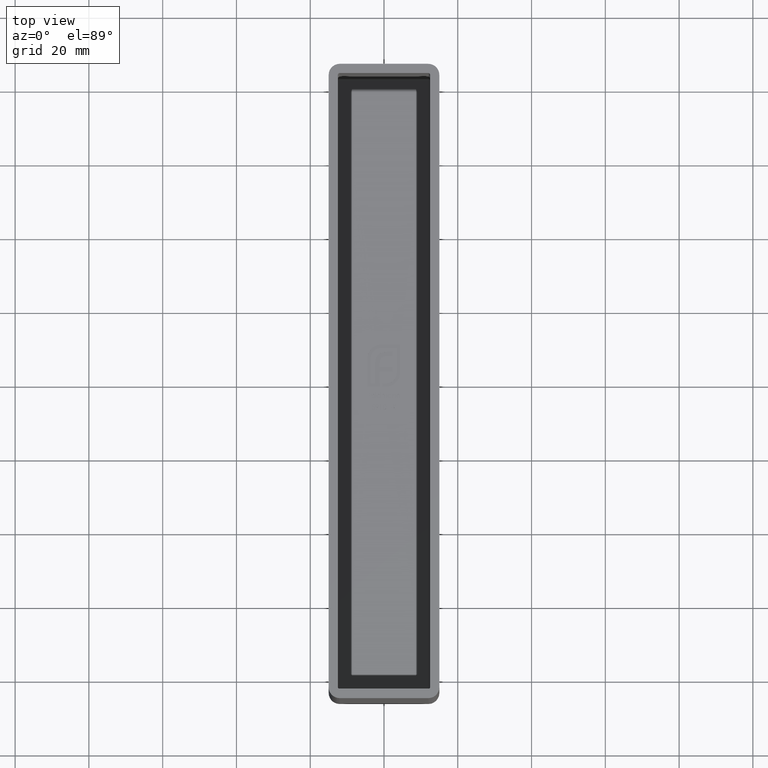
[diagram: clean part render]
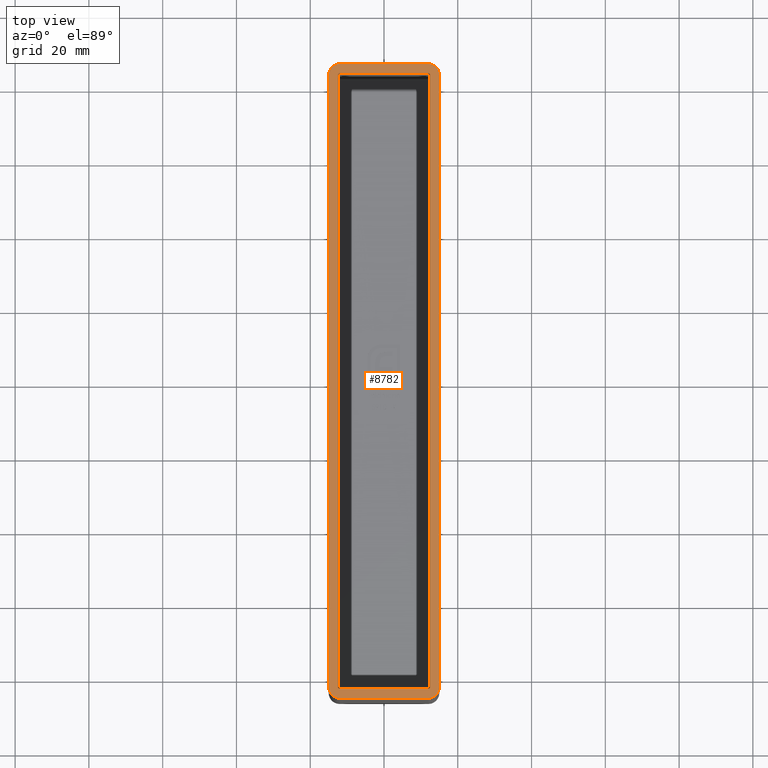
[diagram: same view with one face highlighted and labeled with its STEP entity id]
A machine part, top view. The second image highlights one B-rep face of the part: STEP entity #8782.
In plain terms, the highlighted planar face has unit normal (0, 0, 1).
Its self-contained STEP definition (entity closure, byte-faithful):
#38 = EDGE_CURVE ( 'NONE', #7161, #6505, #11352, .T. ) ;
#202 = EDGE_CURVE ( 'NONE', #8380, #6264, #11638, .T. ) ;
#341 = CIRCLE ( 'NONE', #9864, 3.000000000000000888 ) ;
#423 = VERTEX_POINT ( 'NONE', #10060 ) ;
#430 = DIRECTION ( 'NONE',  ( 1.000000000000000000, 0.000000000000000000, 0.000000000000000000 ) ) ;
#516 = ORIENTED_EDGE ( 'NONE', *, *, #1492, .T. ) ;
#577 = EDGE_CURVE ( 'NONE', #423, #7816, #3168, .T. ) ;
#733 = ORIENTED_EDGE ( 'NONE', *, *, #2365, .F. ) ;
#863 = DIRECTION ( 'NONE',  ( 0.000000000000000000, 0.000000000000000000, 1.000000000000000000 ) ) ;
#899 = CIRCLE ( 'NONE', #5207, 2.999999999999999112 ) ;
#1021 = VERTEX_POINT ( 'NONE', #6332 ) ;
#1160 = CARTESIAN_POINT ( 'NONE',  ( 12.00000000000000888, -83.49999999999998579, 47.00000000000000000 ) ) ;
#1352 = EDGE_CURVE ( 'NONE', #11618, #1021, #1758, .T. ) ;
#1492 = EDGE_CURVE ( 'NONE', #9286, #423, #341, .T. ) ;
#1553 = CARTESIAN_POINT ( 'NONE',  ( 11.99999999999998401, 83.49999999999998579, 47.00000000000000000 ) ) ;
#1576 = EDGE_CURVE ( 'NONE', #6384, #6591, #4871, .T. ) ;
#1758 = CIRCLE ( 'NONE', #3771, 0.5000000000000004441 ) ;
#1810 = DIRECTION ( 'NONE',  ( 0.000000000000000000, 0.000000000000000000, 1.000000000000000000 ) ) ;
#1846 = CARTESIAN_POINT ( 'NONE',  ( 0.000000000000000000, 0.000000000000000000, 47.00000000000000000 ) ) ;
#1975 = CARTESIAN_POINT ( 'NONE',  ( -12.49999999999998046, -82.99999999999998579, 47.00000000000000000 ) ) ;
#2066 = ORIENTED_EDGE ( 'NONE', *, *, #7949, .T. ) ;
#2118 = AXIS2_PLACEMENT_3D ( 'NONE', #9496, #7576, #6466 ) ;
#2289 = CARTESIAN_POINT ( 'NONE',  ( -11.99999999999997868, -82.99999999999998579, 47.00000000000000000 ) ) ;
#2365 = EDGE_CURVE ( 'NONE', #12425, #11618, #7549, .T. ) ;
#2368 = LINE ( 'NONE', #7686, #8347 ) ;
#2541 = DIRECTION ( 'NONE',  ( 0.000000000000000000, 0.000000000000000000, 1.000000000000000000 ) ) ;
#2656 = EDGE_CURVE ( 'NONE', #3924, #7657, #8641, .T. ) ;
#2819 = CARTESIAN_POINT ( 'NONE',  ( -12.50000000000000355, 86.00000000000000000, 47.00000000000000000 ) ) ;
#2918 = LINE ( 'NONE', #12146, #9358 ) ;
#3103 = CARTESIAN_POINT ( 'NONE',  ( 12.49999999999999112, 82.99999999999998579, 47.00000000000000000 ) ) ;
#3168 = LINE ( 'NONE', #7225, #4560 ) ;
#3506 = EDGE_CURVE ( 'NONE', #1021, #4771, #2368, .T. ) ;
#3508 = ORIENTED_EDGE ( 'NONE', *, *, #12201, .T. ) ;
#3573 = FACE_OUTER_BOUND ( 'NONE', #5650, .T. ) ;
#3662 = CIRCLE ( 'NONE', #7935, 0.5000000000000004441 ) ;
#3709 = ORIENTED_EDGE ( 'NONE', *, *, #38, .F. ) ;
#3771 = AXIS2_PLACEMENT_3D ( 'NONE', #8346, #12231, #8209 ) ;
#3841 = AXIS2_PLACEMENT_3D ( 'NONE', #2289, #4296, #11353 ) ;
#3924 = VERTEX_POINT ( 'NONE', #11651 ) ;
#4089 = DIRECTION ( 'NONE',  ( -1.210272192541959355E-16, 1.000000000000000000, 0.000000000000000000 ) ) ;
#4216 = VECTOR ( 'NONE', #8996, 1000.000000000000000 ) ;
#4296 = DIRECTION ( 'NONE',  ( 0.000000000000000000, 0.000000000000000000, 1.000000000000000000 ) ) ;
#4376 = VECTOR ( 'NONE', #12539, 1000.000000000000000 ) ;
#4560 = VECTOR ( 'NONE', #11347, 1000.000000000000000 ) ;
#4769 = CARTESIAN_POINT ( 'NONE',  ( 15.00000000000001421, -82.99999999999998579, 47.00000000000000000 ) ) ;
#4771 = VERTEX_POINT ( 'NONE', #3103 ) ;
#4835 = EDGE_CURVE ( 'NONE', #7657, #12425, #5325, .T. ) ;
#4863 = DIRECTION ( 'NONE',  ( -1.000000000000000000, 0.000000000000000000, 0.000000000000000000 ) ) ;
#4871 = LINE ( 'NONE', #9553, #4376 ) ;
#4874 = DIRECTION ( 'NONE',  ( 1.000000000000000000, 0.000000000000000000, 0.000000000000000000 ) ) ;
#5207 = AXIS2_PLACEMENT_3D ( 'NONE', #6600, #9616, #7552 ) ;
#5325 = CIRCLE ( 'NONE', #2118, 0.5000000000000004441 ) ;
#5650 = EDGE_LOOP ( 'NONE', ( #7653, #3508, #10894, #516, #11880, #11572, #12841, #2066 ) ) ;
#5733 = CARTESIAN_POINT ( 'NONE',  ( -14.99999999999998046, -86.00000000000000000, 47.00000000000000000 ) ) ;
#5779 = DIRECTION ( 'NONE',  ( 1.000000000000000000, 0.000000000000000000, 0.000000000000000000 ) ) ;
#5793 = CARTESIAN_POINT ( 'NONE',  ( 11.99999999999999112, 82.99999999999998579, 47.00000000000000000 ) ) ;
#6264 = VERTEX_POINT ( 'NONE', #11671 ) ;
#6279 = FACE_BOUND ( 'NONE', #11522, .T. ) ;
#6332 = CARTESIAN_POINT ( 'NONE',  ( 12.50000000000001421, -82.99999999999998579, 47.00000000000000000 ) ) ;
#6384 = VERTEX_POINT ( 'NONE', #11853 ) ;
#6435 = VECTOR ( 'NONE', #10899, 1000.000000000000000 ) ;
#6466 = DIRECTION ( 'NONE',  ( 1.000000000000000000, 0.000000000000000000, 0.000000000000000000 ) ) ;
#6487 = CARTESIAN_POINT ( 'NONE',  ( -14.99999999999998046, -83.49999999999998579, 47.00000000000000000 ) ) ;
#6505 = VERTEX_POINT ( 'NONE', #10935 ) ;
#6591 = VERTEX_POINT ( 'NONE', #13017 ) ;
#6600 = CARTESIAN_POINT ( 'NONE',  ( -12.00000000000000355, 82.99999999999998579, 47.00000000000000000 ) ) ;
#6733 = PLANE ( 'NONE',  #10354 ) ;
#6771 = VECTOR ( 'NONE', #10692, 1000.000000000000000 ) ;
#7161 = VERTEX_POINT ( 'NONE', #1553 ) ;
#7193 = EDGE_CURVE ( 'NONE', #7816, #6384, #899, .T. ) ;
#7225 = CARTESIAN_POINT ( 'NONE',  ( -15.00000000000000533, 86.00000000000000000, 47.00000000000000000 ) ) ;
#7262 = AXIS2_PLACEMENT_3D ( 'NONE', #8797, #863, #4874 ) ;
#7282 = VECTOR ( 'NONE', #4863, 1000.000000000000000 ) ;
#7414 = CARTESIAN_POINT ( 'NONE',  ( 11.99999999999999112, 82.99999999999998579, 47.00000000000000000 ) ) ;
#7472 = EDGE_CURVE ( 'NONE', #12254, #9286, #2918, .T. ) ;
#7549 = LINE ( 'NONE', #6487, #4216 ) ;
#7552 = DIRECTION ( 'NONE',  ( 1.000000000000000000, 0.000000000000000000, 0.000000000000000000 ) ) ;
#7576 = DIRECTION ( 'NONE',  ( 0.000000000000000000, 0.000000000000000000, 1.000000000000000000 ) ) ;
#7653 = ORIENTED_EDGE ( 'NONE', *, *, #202, .T. ) ;
#7657 = VERTEX_POINT ( 'NONE', #1975 ) ;
#7686 = CARTESIAN_POINT ( 'NONE',  ( 12.49999999999999112, 86.00000000000000000, 47.00000000000000000 ) ) ;
#7791 = CIRCLE ( 'NONE', #7262, 2.999999999999999112 ) ;
#7816 = VERTEX_POINT ( 'NONE', #10339 ) ;
#7935 = AXIS2_PLACEMENT_3D ( 'NONE', #9960, #8143, #11215 ) ;
#7949 = EDGE_CURVE ( 'NONE', #6591, #8380, #10761, .T. ) ;
#8143 = DIRECTION ( 'NONE',  ( 0.000000000000000000, 0.000000000000000000, 1.000000000000000000 ) ) ;
#8209 = DIRECTION ( 'NONE',  ( 1.000000000000000000, 0.000000000000000000, 0.000000000000000000 ) ) ;
#8343 = AXIS2_PLACEMENT_3D ( 'NONE', #5793, #1810, #10881 ) ;
#8346 = CARTESIAN_POINT ( 'NONE',  ( 12.00000000000001421, -82.99999999999998579, 47.00000000000000000 ) ) ;
#8347 = VECTOR ( 'NONE', #8734, 1000.000000000000000 ) ;
#8380 = VERTEX_POINT ( 'NONE', #11654 ) ;
#8641 = LINE ( 'NONE', #2819, #6435 ) ;
#8734 = DIRECTION ( 'NONE',  ( -1.210272192541959355E-16, 1.000000000000000000, 0.000000000000000000 ) ) ;
#8782 = ADVANCED_FACE ( 'NONE', ( #6279, #3573 ), #6733, .T. ) ;
#8797 = CARTESIAN_POINT ( 'NONE',  ( 12.00000000000001421, -82.99999999999998579, 47.00000000000000000 ) ) ;
#8842 = ORIENTED_EDGE ( 'NONE', *, *, #2656, .F. ) ;
#8974 = EDGE_CURVE ( 'NONE', #4771, #7161, #12225, .T. ) ;
#8996 = DIRECTION ( 'NONE',  ( 1.000000000000000000, 0.000000000000000000, 0.000000000000000000 ) ) ;
#9286 = VERTEX_POINT ( 'NONE', #12158 ) ;
#9358 = VECTOR ( 'NONE', #4089, 1000.000000000000000 ) ;
#9496 = CARTESIAN_POINT ( 'NONE',  ( -11.99999999999997868, -82.99999999999998579, 47.00000000000000000 ) ) ;
#9553 = CARTESIAN_POINT ( 'NONE',  ( -15.00000000000000533, 86.00000000000000000, 47.00000000000000000 ) ) ;
#9616 = DIRECTION ( 'NONE',  ( 0.000000000000000000, 0.000000000000000000, 1.000000000000000000 ) ) ;
#9861 = ORIENTED_EDGE ( 'NONE', *, *, #8974, .F. ) ;
#9864 = AXIS2_PLACEMENT_3D ( 'NONE', #7414, #2541, #430 ) ;
#9878 = DIRECTION ( 'NONE',  ( 0.000000000000000000, 0.000000000000000000, 1.000000000000000000 ) ) ;
#9960 = CARTESIAN_POINT ( 'NONE',  ( -12.00000000000000355, 82.99999999999998579, 47.00000000000000000 ) ) ;
#10060 = CARTESIAN_POINT ( 'NONE',  ( 11.99999999999998401, 86.00000000000000000, 47.00000000000000000 ) ) ;
#10332 = CARTESIAN_POINT ( 'NONE',  ( -11.99999999999997868, -83.49999999999998579, 47.00000000000000000 ) ) ;
#10339 = CARTESIAN_POINT ( 'NONE',  ( -12.00000000000000355, 86.00000000000000000, 47.00000000000000000 ) ) ;
#10354 = AXIS2_PLACEMENT_3D ( 'NONE', #1846, #9878, #5779 ) ;
#10579 = ORIENTED_EDGE ( 'NONE', *, *, #3506, .F. ) ;
#10692 = DIRECTION ( 'NONE',  ( 1.000000000000000000, 0.000000000000000000, 0.000000000000000000 ) ) ;
#10748 = ORIENTED_EDGE ( 'NONE', *, *, #4835, .F. ) ;
#10761 = CIRCLE ( 'NONE', #3841, 2.999999999999999112 ) ;
#10881 = DIRECTION ( 'NONE',  ( 1.000000000000000000, 0.000000000000000000, 0.000000000000000000 ) ) ;
#10894 = ORIENTED_EDGE ( 'NONE', *, *, #7472, .T. ) ;
#10899 = DIRECTION ( 'NONE',  ( 1.210272192541959355E-16, -1.000000000000000000, 0.000000000000000000 ) ) ;
#10935 = CARTESIAN_POINT ( 'NONE',  ( -12.00000000000000355, 83.49999999999998579, 47.00000000000000000 ) ) ;
#11215 = DIRECTION ( 'NONE',  ( 1.000000000000000000, 0.000000000000000000, 0.000000000000000000 ) ) ;
#11347 = DIRECTION ( 'NONE',  ( -1.000000000000000000, 0.000000000000000000, 0.000000000000000000 ) ) ;
#11352 = LINE ( 'NONE', #12980, #7282 ) ;
#11353 = DIRECTION ( 'NONE',  ( 1.000000000000000000, 0.000000000000000000, 0.000000000000000000 ) ) ;
#11522 = EDGE_LOOP ( 'NONE', ( #733, #10748, #8842, #12368, #3709, #9861, #10579, #12666 ) ) ;
#11572 = ORIENTED_EDGE ( 'NONE', *, *, #7193, .T. ) ;
#11618 = VERTEX_POINT ( 'NONE', #1160 ) ;
#11638 = LINE ( 'NONE', #5733, #6771 ) ;
#11651 = CARTESIAN_POINT ( 'NONE',  ( -12.50000000000000355, 82.99999999999998579, 47.00000000000000000 ) ) ;
#11654 = CARTESIAN_POINT ( 'NONE',  ( -11.99999999999997868, -86.00000000000000000, 47.00000000000000000 ) ) ;
#11671 = CARTESIAN_POINT ( 'NONE',  ( 12.00000000000000888, -86.00000000000000000, 47.00000000000000000 ) ) ;
#11853 = CARTESIAN_POINT ( 'NONE',  ( -15.00000000000000533, 82.99999999999998579, 47.00000000000000000 ) ) ;
#11880 = ORIENTED_EDGE ( 'NONE', *, *, #577, .T. ) ;
#12146 = CARTESIAN_POINT ( 'NONE',  ( 14.99999999999999112, 86.00000000000000000, 47.00000000000000000 ) ) ;
#12158 = CARTESIAN_POINT ( 'NONE',  ( 14.99999999999999112, 82.99999999999998579, 47.00000000000000000 ) ) ;
#12201 = EDGE_CURVE ( 'NONE', #6264, #12254, #7791, .T. ) ;
#12225 = CIRCLE ( 'NONE', #8343, 0.5000000000000004441 ) ;
#12231 = DIRECTION ( 'NONE',  ( 0.000000000000000000, 0.000000000000000000, 1.000000000000000000 ) ) ;
#12254 = VERTEX_POINT ( 'NONE', #4769 ) ;
#12324 = EDGE_CURVE ( 'NONE', #6505, #3924, #3662, .T. ) ;
#12368 = ORIENTED_EDGE ( 'NONE', *, *, #12324, .F. ) ;
#12425 = VERTEX_POINT ( 'NONE', #10332 ) ;
#12539 = DIRECTION ( 'NONE',  ( 1.210272192541959355E-16, -1.000000000000000000, 0.000000000000000000 ) ) ;
#12666 = ORIENTED_EDGE ( 'NONE', *, *, #1352, .F. ) ;
#12841 = ORIENTED_EDGE ( 'NONE', *, *, #1576, .T. ) ;
#12980 = CARTESIAN_POINT ( 'NONE',  ( -15.00000000000000533, 83.49999999999998579, 47.00000000000000000 ) ) ;
#13017 = CARTESIAN_POINT ( 'NONE',  ( -14.99999999999998046, -82.99999999999998579, 47.00000000000000000 ) ) ;